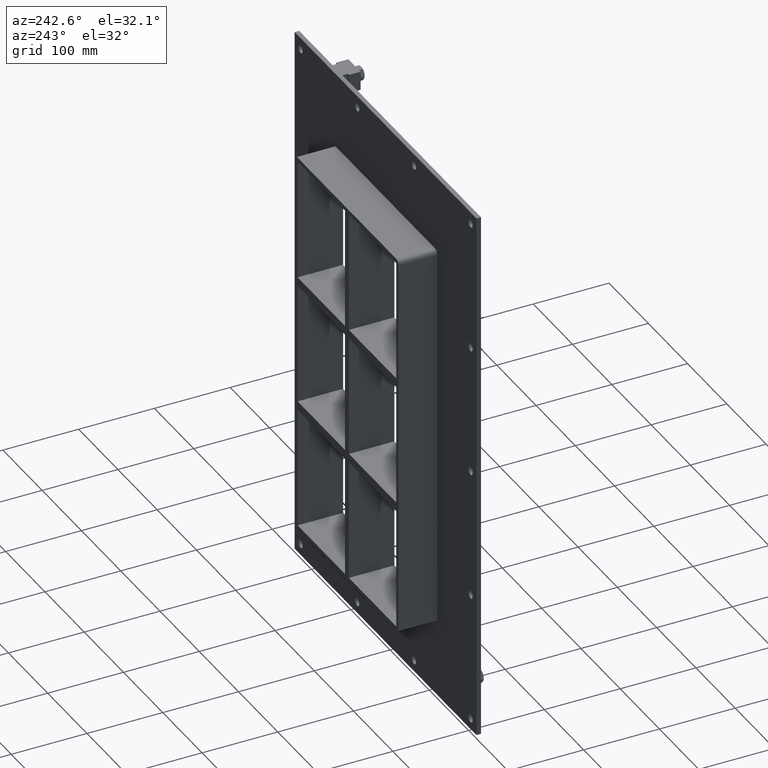
[diagram: clean part render]
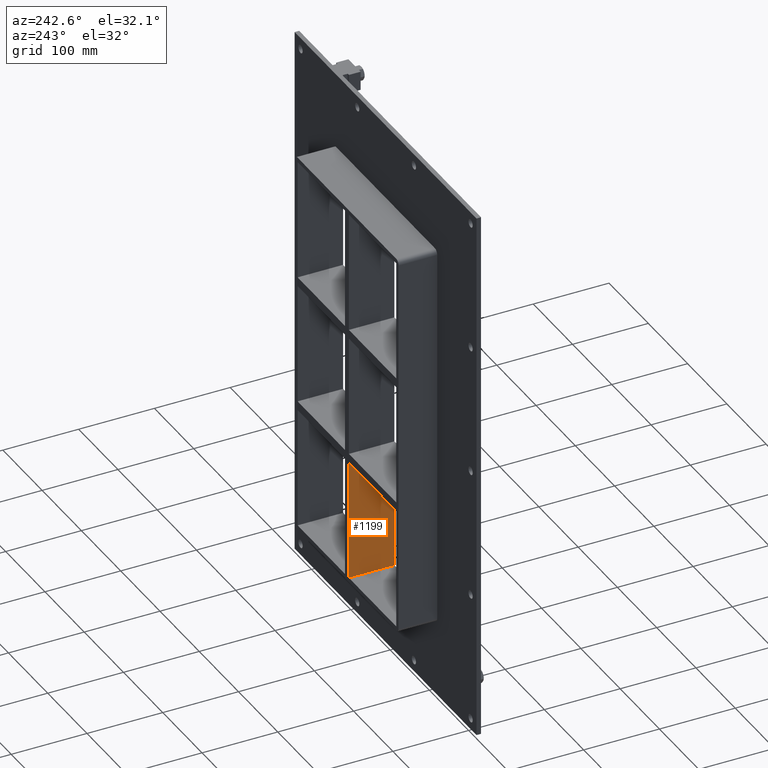
[diagram: same view with one face highlighted and labeled with its STEP entity id]
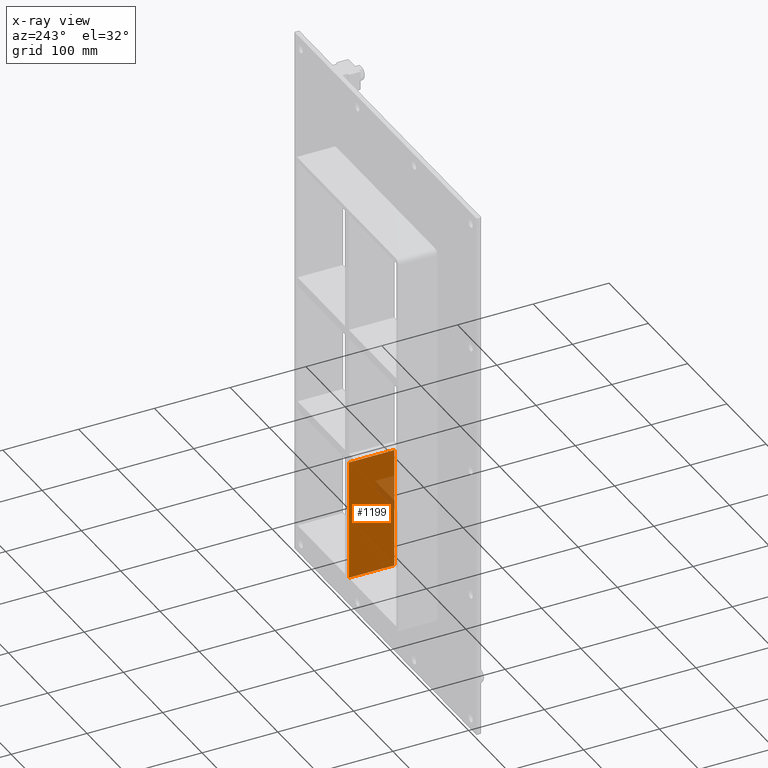
[diagram: x-ray of the same camera — body ghosted, the highlighted face saturated]
A machine part, auxiliary view. The second image highlights one B-rep face of the part: STEP entity #1199.
The next image is the same camera in x-ray: the body ghosted, the highlighted face saturated — about 8% of this face is hidden behind the body in this view.
In plain terms, the highlighted planar face has unit normal (-1, 0, 0).
Its self-contained STEP definition (entity closure, byte-faithful):
#851=CARTESIAN_POINT('',(-4.999999999999147,-3.0,-91.7500000000109));
#852=VERTEX_POINT('',#851);
#853=CARTESIAN_POINT('',(-4.999999999999147,57.0,-91.7500000000109));
#854=VERTEX_POINT('',#853);
#855=CARTESIAN_POINT('',(-4.999999999999139,-3.0,-91.7500000000109));
#856=DIRECTION('',(0.0,1.0,0.0));
#857=VECTOR('',#856,60.0);
#858=LINE('',#855,#857);
#859=EDGE_CURVE('',#852,#854,#858,.T.);
#1123=CARTESIAN_POINT('',(-4.999999999999112,57.0,-251.25));
#1124=VERTEX_POINT('',#1123);
#1131=CARTESIAN_POINT('',(-4.999999999999112,57.0,-251.25));
#1132=DIRECTION('',(0.0,0.0,1.0));
#1133=VECTOR('',#1132,159.49999999998911);
#1134=LINE('',#1131,#1133);
#1135=EDGE_CURVE('',#1124,#854,#1134,.T.);
#1176=CARTESIAN_POINT('',(-4.999999999999112,-3.0,-251.25));
#1177=DIRECTION('',(-1.0,0.0,0.0));
#1178=DIRECTION('',(0.0,0.0,1.0));
#1179=AXIS2_PLACEMENT_3D('',#1176,#1177,#1178);
#1180=PLANE('',#1179);
#1181=ORIENTED_EDGE('',*,*,#859,.T.);
#1182=ORIENTED_EDGE('',*,*,#1135,.F.);
#1183=CARTESIAN_POINT('',(-4.999999999999112,-3.0,-251.25));
#1184=VERTEX_POINT('',#1183);
#1185=CARTESIAN_POINT('',(-4.999999999999112,-3.0,-251.25));
#1186=DIRECTION('',(0.0,1.0,0.0));
#1187=VECTOR('',#1186,60.000000000000007);
#1188=LINE('',#1185,#1187);
#1189=EDGE_CURVE('',#1184,#1124,#1188,.T.);
#1190=ORIENTED_EDGE('',*,*,#1189,.F.);
#1191=CARTESIAN_POINT('',(-4.999999999999112,-3.0,-251.25));
#1192=DIRECTION('',(0.0,0.0,1.0));
#1193=VECTOR('',#1192,159.49999999998911);
#1194=LINE('',#1191,#1193);
#1195=EDGE_CURVE('',#1184,#852,#1194,.T.);
#1196=ORIENTED_EDGE('',*,*,#1195,.T.);
#1197=EDGE_LOOP('',(#1181,#1182,#1190,#1196));
#1198=FACE_OUTER_BOUND('',#1197,.T.);
#1199=ADVANCED_FACE('',(#1198),#1180,.T.);